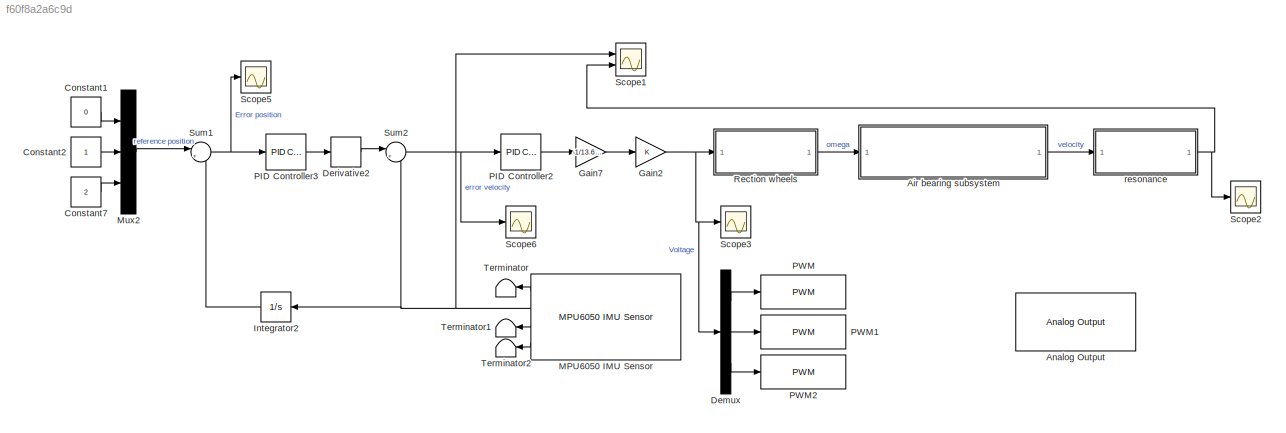
MODEL slx_f60f8a2a6c9d
KIND model
CONFIG AbsTol = auto
CONFIG EnableMultiTasking = off
CONFIG FixedStep = auto
CONFIG MaxStep = auto
CONFIG MinStep = auto
CONFIG RelTol = 1e-3
CONFIG SampleTimeConstraint = Unconstrained
CONFIG SolverName = VariableStepAuto
CONFIG StartTime = 0.0
CONFIG StopTime = 10.0
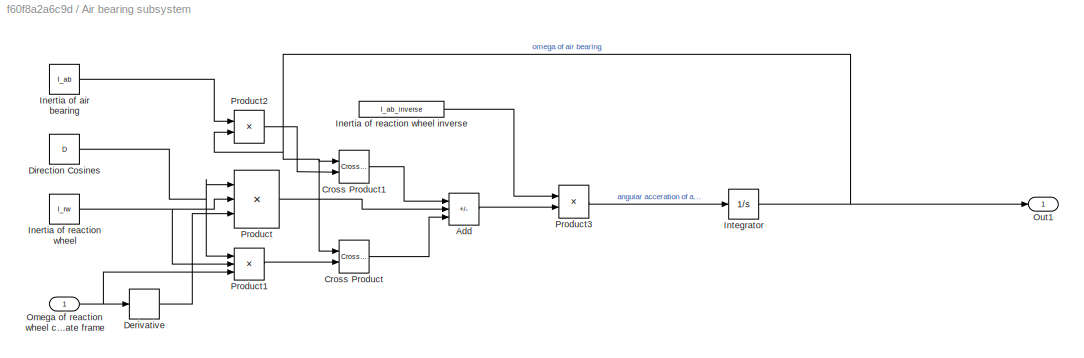
BLOCK [SubSystem] Air bearing subsystem
  Ports = [1, 1]
  RequestExecContextInheritance = off
BLOCK [Sum] Air bearing subsystem/Add
  IconShape = rectangular
  Inputs = ---
  Ports = [3, 1]
BLOCK [Reference] Air bearing subsystem/Cross Product  REF=vrlib/Utilities/Cross Product
  Ports = [2, 1]
  SourceBlock = vrlib/Utilities/Cross Product
  SourceProductBaseCode = VR
  SourceType = Cross Product
BLOCK [Reference] Air bearing subsystem/Cross Product1  REF=vrlib/Utilities/Cross Product
  Ports = [2, 1]
  SourceBlock = vrlib/Utilities/Cross Product
  SourceProductBaseCode = VR
  SourceType = Cross Product
BLOCK [Derivative] Air bearing subsystem/Derivative
BLOCK [Constant] Air bearing subsystem/Direction Cosines 
  Value = D
BLOCK [Constant] Air bearing subsystem/Inertia of air bearing
  Value = I_ab
BLOCK [Constant] Air bearing subsystem/Inertia of reaction wheel
  Value = I_rw
BLOCK [Constant] Air bearing subsystem/Inertia of reaction wheel inverse
  Value = I_ab_inverse
BLOCK [Integrator] Air bearing subsystem/Integrator
  InitialCondition = [0 1 2]
  Ports = [1, 1]
BLOCK [Inport] Air bearing subsystem/Omega of reaction wheel co-ordinate frame
BLOCK [Outport] Air bearing subsystem/Out1
  VectorParamsAs1DForOutWhenUnconnected = off
BLOCK [Product] Air bearing subsystem/Product
  Inputs = 3
  Multiplication = Matrix(*)
  Ports = [3, 1]
BLOCK [Product] Air bearing subsystem/Product1
  Inputs = 3
  Multiplication = Matrix(*)
  Ports = [3, 1]
BLOCK [Product] Air bearing subsystem/Product2
  Multiplication = Matrix(*)
  Ports = [2, 1]
BLOCK [Product] Air bearing subsystem/Product3
  Multiplication = Matrix(*)
  Ports = [2, 1]
BLOCK [Reference] Analog Output  REF=arduinolib/Analog Output
  Ports = [1]
  SourceBlock = arduinolib/Analog Output
  SourceProductBaseCode = ARDUINO
  SourceType = Analog Output
BLOCK [Constant] Constant1
  Value = 0
BLOCK [Constant] Constant2
BLOCK [Constant] Constant7
  Value = 2
BLOCK [Demux] Demux
  Outputs = 3
  Ports = [1, 3]
BLOCK [Derivative] Derivative2
BLOCK [Gain] Gain2
  Gain = K
  Multiplication = Matrix(K*u)
BLOCK [Gain] Gain7
  Gain = -1/13.661
BLOCK [Integrator] Integrator2
  InitialCondition = [1 2 3]
  Ports = [1, 1]
BLOCK [Reference] MPU6050 IMU Sensor  REF=arduinosensorlib/MPU6050 IMU Sensor
  Ports = [0, 4]
  SourceBlock = arduinosensorlib/MPU6050 IMU Sensor
  SourceProductBaseCode = ARDUINO
  SourceType = Arduino MPU6050
BLOCK [Mux] Mux2
  DisplayOption = bar
  Inputs = 3
  Ports = [3, 1]
BLOCK [Reference] PID Controller2  REF=pid_lib/PID Controller
  Ports = [1, 1]
  SourceBlock = pid_lib/PID Controller
  SourceProductBaseCode = SL
  SourceType = PID 1dof
BLOCK [Reference] PID Controller3  REF=pid_lib/PID Controller
  Ports = [1, 1]
  SourceBlock = pid_lib/PID Controller
  SourceProductBaseCode = SL
  SourceType = PID 1dof
BLOCK [Reference] PWM  REF=arduinolib/PWM
  Ports = [1]
  SourceBlock = arduinolib/PWM
  SourceProductBaseCode = ARDUINO
  SourceType = Arduino PWM
BLOCK [Reference] PWM1  REF=arduinolib/PWM
  Ports = [1]
  SourceBlock = arduinolib/PWM
  SourceProductBaseCode = ARDUINO
  SourceType = Arduino PWM
BLOCK [Reference] PWM2  REF=arduinolib/PWM
  Ports = [1]
  SourceBlock = arduinolib/PWM
  SourceProductBaseCode = ARDUINO
  SourceType = Arduino PWM
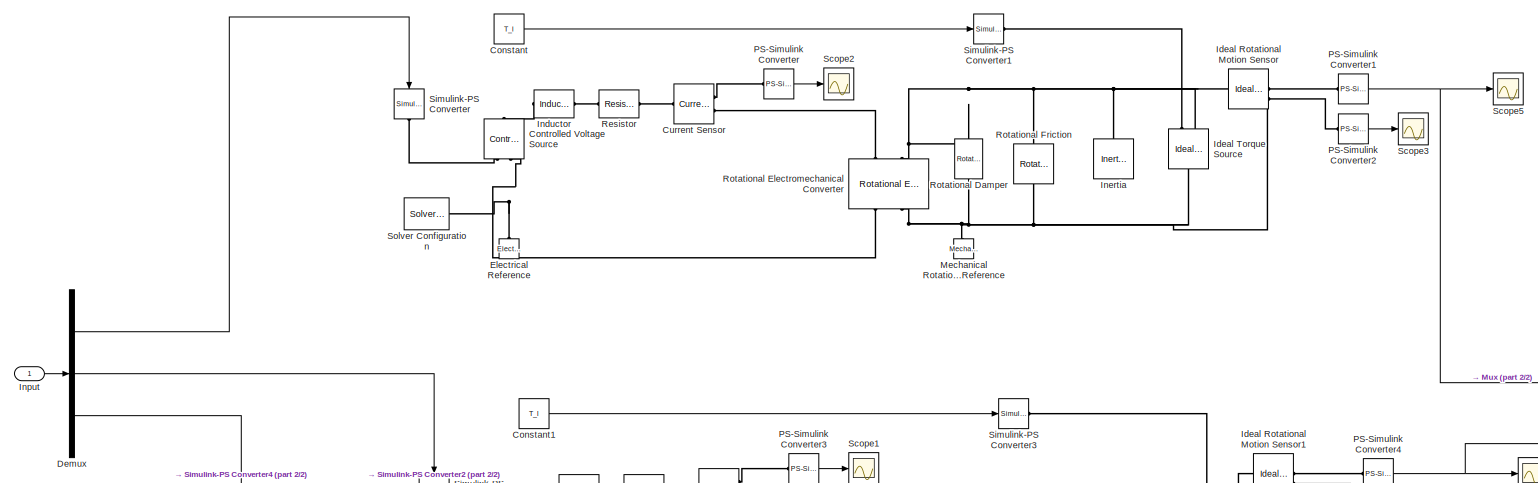
[diagram: Rection wheels - part 1/2, full width, top band]
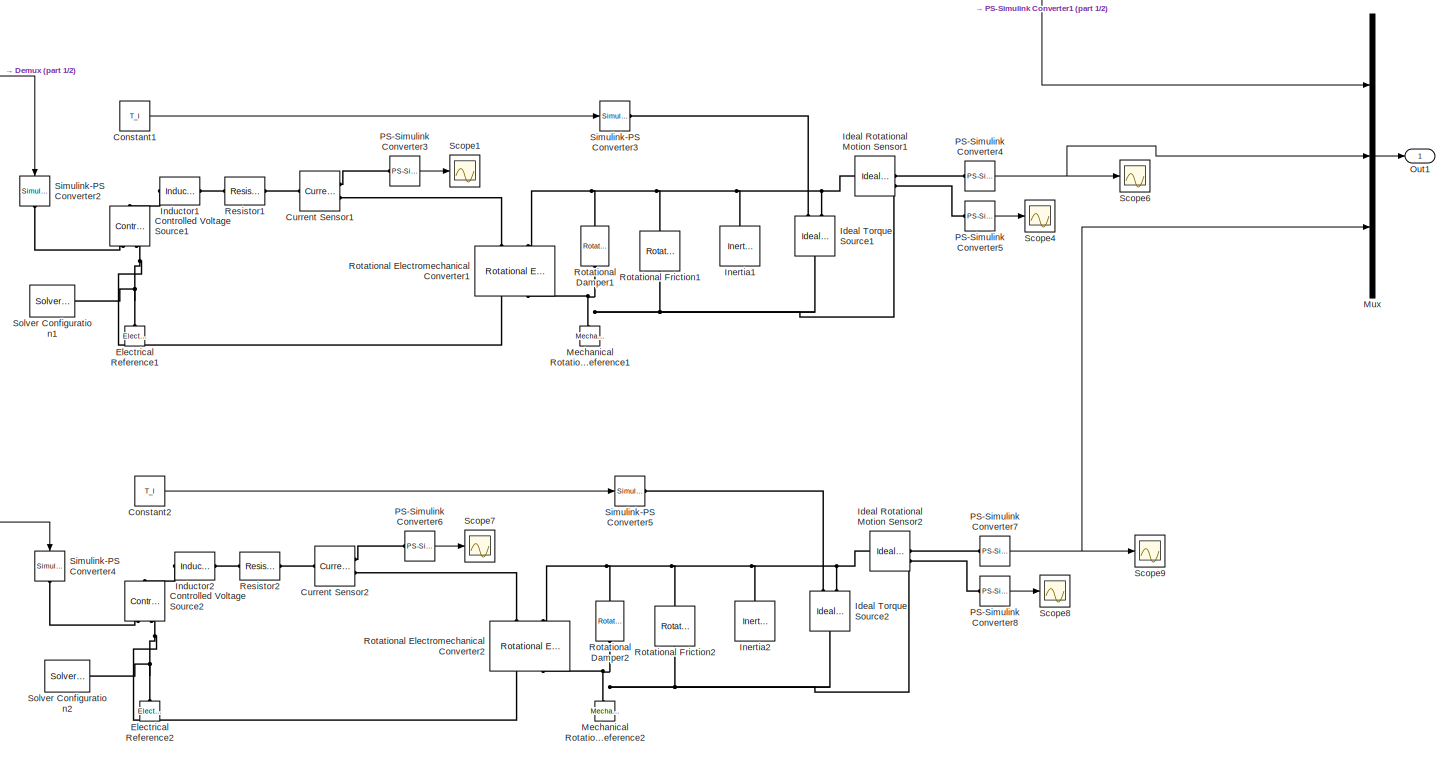
[diagram: Rection wheels - part 2/2, full width, middle band]
BLOCK [SubSystem] Rection wheels
  Ports = [1, 1]
  RequestExecContextInheritance = off
BLOCK [Constant] Rection wheels/Constant
  Value = T_l
BLOCK [Constant] Rection wheels/Constant1
  Value = T_l
BLOCK [Constant] Rection wheels/Constant2
  Value = T_l
BLOCK [Reference] Rection wheels/Controlled Voltage Source  REF=fl_lib/Electrical/Electrical Sources/Controlled Voltage
Source
  NameLocation = right
  Ports = [0, 0, 0, 0, 0, 1, 2]
  SourceBlock = fl_lib/Electrical/Electrical Sources/Controlled Voltage\nSource
  SourceProductBaseCode = SS
  SourceType = Controlled Voltage\nSource
BLOCK [Reference] Rection wheels/Controlled Voltage Source1  REF=fl_lib/Electrical/Electrical Sources/Controlled Voltage
Source
  NameLocation = right
  Ports = [0, 0, 0, 0, 0, 1, 2]
  SourceBlock = fl_lib/Electrical/Electrical Sources/Controlled Voltage\nSource
  SourceProductBaseCode = SS
  SourceType = Controlled Voltage\nSource
BLOCK [Reference] Rection wheels/Controlled Voltage Source2  REF=fl_lib/Electrical/Electrical Sources/Controlled Voltage
Source
  NameLocation = right
  Ports = [0, 0, 0, 0, 0, 1, 2]
  SourceBlock = fl_lib/Electrical/Electrical Sources/Controlled Voltage\nSource
  SourceProductBaseCode = SS
  SourceType = Controlled Voltage\nSource
BLOCK [Reference] Rection wheels/Current Sensor  REF=fl_lib/Electrical/Electrical Sensors/Current Sensor
  Ports = [0, 0, 0, 0, 0, 1, 2]
  SourceBlock = fl_lib/Electrical/Electrical Sensors/Current Sensor
  SourceProductBaseCode = SS
  SourceType = Current Sensor
BLOCK [Reference] Rection wheels/Current Sensor1  REF=fl_lib/Electrical/Electrical Sensors/Current Sensor
  Ports = [0, 0, 0, 0, 0, 1, 2]
  SourceBlock = fl_lib/Electrical/Electrical Sensors/Current Sensor
  SourceProductBaseCode = SS
  SourceType = Current Sensor
BLOCK [Reference] Rection wheels/Current Sensor2  REF=fl_lib/Electrical/Electrical Sensors/Current Sensor
  Ports = [0, 0, 0, 0, 0, 1, 2]
  SourceBlock = fl_lib/Electrical/Electrical Sensors/Current Sensor
  SourceProductBaseCode = SS
  SourceType = Current Sensor
BLOCK [Demux] Rection wheels/Demux
  Outputs = 3
  Ports = [1, 3]
BLOCK [Reference] Rection wheels/Electrical Reference  REF=fl_lib/Electrical/Electrical Elements/Electrical Reference
  NameLocation = right
  Ports = [0, 0, 0, 0, 0, 1]
  SourceBlock = fl_lib/Electrical/Electrical Elements/Electrical Reference
  SourceProductBaseCode = SS
  SourceType = Electrical Reference
BLOCK [Reference] Rection wheels/Electrical Reference1  REF=fl_lib/Electrical/Electrical Elements/Electrical Reference
  NameLocation = right
  Ports = [0, 0, 0, 0, 0, 1]
  SourceBlock = fl_lib/Electrical/Electrical Elements/Electrical Reference
  SourceProductBaseCode = SS
  SourceType = Electrical Reference
BLOCK [Reference] Rection wheels/Electrical Reference2  REF=fl_lib/Electrical/Electrical Elements/Electrical Reference
  NameLocation = right
  Ports = [0, 0, 0, 0, 0, 1]
  SourceBlock = fl_lib/Electrical/Electrical Elements/Electrical Reference
  SourceProductBaseCode = SS
  SourceType = Electrical Reference
BLOCK [Reference] Rection wheels/Ideal Rotational Motion Sensor  REF=fl_lib/Mechanical/Mechanical Sensors/Ideal Rotational
Motion Sensor
  Ports = [0, 0, 0, 0, 0, 1, 3]
  SourceBlock = fl_lib/Mechanical/Mechanical Sensors/Ideal Rotational\nMotion Sensor
  SourceProductBaseCode = SS
  SourceType = Ideal Rotational\nMotion Sensor
BLOCK [Reference] Rection wheels/Ideal Rotational Motion Sensor1  REF=fl_lib/Mechanical/Mechanical Sensors/Ideal Rotational
Motion Sensor
  Ports = [0, 0, 0, 0, 0, 1, 3]
  SourceBlock = fl_lib/Mechanical/Mechanical Sensors/Ideal Rotational\nMotion Sensor
  SourceProductBaseCode = SS
  SourceType = Ideal Rotational\nMotion Sensor
BLOCK [Reference] Rection wheels/Ideal Rotational Motion Sensor2  REF=fl_lib/Mechanical/Mechanical Sensors/Ideal Rotational
Motion Sensor
  Ports = [0, 0, 0, 0, 0, 1, 3]
  SourceBlock = fl_lib/Mechanical/Mechanical Sensors/Ideal Rotational\nMotion Sensor
  SourceProductBaseCode = SS
  SourceType = Ideal Rotational\nMotion Sensor
BLOCK [Reference] Rection wheels/Ideal Torque Source  REF=fl_lib/Mechanical/Mechanical Sources/Ideal Torque Source
  NameLocation = left
  Ports = [0, 0, 0, 0, 0, 1, 2]
  SourceBlock = fl_lib/Mechanical/Mechanical Sources/Ideal Torque Source
  SourceProductBaseCode = SS
  SourceType = Ideal Torque Source
BLOCK [Reference] Rection wheels/Ideal Torque Source1  REF=fl_lib/Mechanical/Mechanical Sources/Ideal Torque Source
  NameLocation = left
  Ports = [0, 0, 0, 0, 0, 1, 2]
  SourceBlock = fl_lib/Mechanical/Mechanical Sources/Ideal Torque Source
  SourceProductBaseCode = SS
  SourceType = Ideal Torque Source
BLOCK [Reference] Rection wheels/Ideal Torque Source2  REF=fl_lib/Mechanical/Mechanical Sources/Ideal Torque Source
  NameLocation = left
  Ports = [0, 0, 0, 0, 0, 1, 2]
  SourceBlock = fl_lib/Mechanical/Mechanical Sources/Ideal Torque Source
  SourceProductBaseCode = SS
  SourceType = Ideal Torque Source
BLOCK [Reference] Rection wheels/Inductor  REF=ee_lib/Passive/Inductor
  Ports = [0, 0, 0, 0, 0, 1, 1]
  SourceBlock = ee_lib/Passive/Inductor
  SourceProductBaseCode = SN
  SourceType = Inductor
BLOCK [Reference] Rection wheels/Inductor1  REF=ee_lib/Passive/Inductor
  Ports = [0, 0, 0, 0, 0, 1, 1]
  SourceBlock = ee_lib/Passive/Inductor
  SourceProductBaseCode = SN
  SourceType = Inductor
BLOCK [Reference] Rection wheels/Inductor2  REF=ee_lib/Passive/Inductor
  Ports = [0, 0, 0, 0, 0, 1, 1]
  SourceBlock = ee_lib/Passive/Inductor
  SourceProductBaseCode = SN
  SourceType = Inductor
BLOCK [Reference] Rection wheels/Inertia  REF=fl_lib/Mechanical/Rotational Elements/Inertia
  NameLocation = right
  Ports = [0, 0, 0, 0, 0, 1]
  SourceBlock = fl_lib/Mechanical/Rotational Elements/Inertia
  SourceProductBaseCode = SS
  SourceType = Inertia
BLOCK [Reference] Rection wheels/Inertia1  REF=fl_lib/Mechanical/Rotational Elements/Inertia
  NameLocation = right
  Ports = [0, 0, 0, 0, 0, 1]
  SourceBlock = fl_lib/Mechanical/Rotational Elements/Inertia
  SourceProductBaseCode = SS
  SourceType = Inertia
BLOCK [Reference] Rection wheels/Inertia2  REF=fl_lib/Mechanical/Rotational Elements/Inertia
  NameLocation = right
  Ports = [0, 0, 0, 0, 0, 1]
  SourceBlock = fl_lib/Mechanical/Rotational Elements/Inertia
  SourceProductBaseCode = SS
  SourceType = Inertia
BLOCK [Inport] Rection wheels/Input
BLOCK [Reference] Rection wheels/Mechanical Rotational Reference  REF=fl_lib/Mechanical/Rotational Elements/Mechanical
Rotational Reference
  NameLocation = right
  Ports = [0, 0, 0, 0, 0, 1]
  SourceBlock = fl_lib/Mechanical/Rotational Elements/Mechanical\nRotational Reference
  SourceProductBaseCode = SS
  SourceType = Mechanical\nRotational Reference
BLOCK [Reference] Rection wheels/Mechanical Rotational Reference1  REF=fl_lib/Mechanical/Rotational Elements/Mechanical
Rotational Reference
  NameLocation = right
  Ports = [0, 0, 0, 0, 0, 1]
  SourceBlock = fl_lib/Mechanical/Rotational Elements/Mechanical\nRotational Reference
  SourceProductBaseCode = SS
  SourceType = Mechanical\nRotational Reference
BLOCK [Reference] Rection wheels/Mechanical Rotational Reference2  REF=fl_lib/Mechanical/Rotational Elements/Mechanical
Rotational Reference
  NameLocation = right
  Ports = [0, 0, 0, 0, 0, 1]
  SourceBlock = fl_lib/Mechanical/Rotational Elements/Mechanical\nRotational Reference
  SourceProductBaseCode = SS
  SourceType = Mechanical\nRotational Reference
BLOCK [Mux] Rection wheels/Mux
  DisplayOption = bar
  Inputs = 3
  Ports = [3, 1]
BLOCK [Outport] Rection wheels/Out1
  VectorParamsAs1DForOutWhenUnconnected = off
BLOCK [Reference] Rection wheels/PS-Simulink Converter  REF=nesl_utility/PS-Simulink
Converter
  Ports = [0, 1, 0, 0, 0, 1]
  SourceBlock = nesl_utility/PS-Simulink\nConverter
  SourceProductBaseCode = SS
  SourceType = PS-Simulink\nConverter
BLOCK [Reference] Rection wheels/PS-Simulink Converter1  REF=nesl_utility/PS-Simulink
Converter
  Ports = [0, 1, 0, 0, 0, 1]
  SourceBlock = nesl_utility/PS-Simulink\nConverter
  SourceProductBaseCode = SS
  SourceType = PS-Simulink\nConverter
BLOCK [Reference] Rection wheels/PS-Simulink Converter2  REF=nesl_utility/PS-Simulink
Converter
  Ports = [0, 1, 0, 0, 0, 1]
  SourceBlock = nesl_utility/PS-Simulink\nConverter
  SourceProductBaseCode = SS
  SourceType = PS-Simulink\nConverter
BLOCK [Reference] Rection wheels/PS-Simulink Converter3  REF=nesl_utility/PS-Simulink
Converter
  Ports = [0, 1, 0, 0, 0, 1]
  SourceBlock = nesl_utility/PS-Simulink\nConverter
  SourceProductBaseCode = SS
  SourceType = PS-Simulink\nConverter
BLOCK [Reference] Rection wheels/PS-Simulink Converter4  REF=nesl_utility/PS-Simulink
Converter
  Ports = [0, 1, 0, 0, 0, 1]
  SourceBlock = nesl_utility/PS-Simulink\nConverter
  SourceProductBaseCode = SS
  SourceType = PS-Simulink\nConverter
BLOCK [Reference] Rection wheels/PS-Simulink Converter5  REF=nesl_utility/PS-Simulink
Converter
  Ports = [0, 1, 0, 0, 0, 1]
  SourceBlock = nesl_utility/PS-Simulink\nConverter
  SourceProductBaseCode = SS
  SourceType = PS-Simulink\nConverter
BLOCK [Reference] Rection wheels/PS-Simulink Converter6  REF=nesl_utility/PS-Simulink
Converter
  Ports = [0, 1, 0, 0, 0, 1]
  SourceBlock = nesl_utility/PS-Simulink\nConverter
  SourceProductBaseCode = SS
  SourceType = PS-Simulink\nConverter
BLOCK [Reference] Rection wheels/PS-Simulink Converter7  REF=nesl_utility/PS-Simulink
Converter
  Ports = [0, 1, 0, 0, 0, 1]
  SourceBlock = nesl_utility/PS-Simulink\nConverter
  SourceProductBaseCode = SS
  SourceType = PS-Simulink\nConverter
BLOCK [Reference] Rection wheels/PS-Simulink Converter8  REF=nesl_utility/PS-Simulink
Converter
  Ports = [0, 1, 0, 0, 0, 1]
  SourceBlock = nesl_utility/PS-Simulink\nConverter
  SourceProductBaseCode = SS
  SourceType = PS-Simulink\nConverter
BLOCK [Reference] Rection wheels/Resistor  REF=ee_lib/Passive/Resistor
  Ports = [0, 0, 0, 0, 0, 1, 1]
  SourceBlock = ee_lib/Passive/Resistor
  SourceProductBaseCode = SN
  SourceType = Resistor
BLOCK [Reference] Rection wheels/Resistor1  REF=ee_lib/Passive/Resistor
  Ports = [0, 0, 0, 0, 0, 1, 1]
  SourceBlock = ee_lib/Passive/Resistor
  SourceProductBaseCode = SN
  SourceType = Resistor
BLOCK [Reference] Rection wheels/Resistor2  REF=ee_lib/Passive/Resistor
  Ports = [0, 0, 0, 0, 0, 1, 1]
  SourceBlock = ee_lib/Passive/Resistor
  SourceProductBaseCode = SN
  SourceType = Resistor
BLOCK [Reference] Rection wheels/Rotational Damper  REF=fl_lib/Mechanical/Rotational Elements/Rotational Damper
  NameLocation = left
  Ports = [0, 0, 0, 0, 0, 1, 1]
  SourceBlock = fl_lib/Mechanical/Rotational Elements/Rotational Damper
  SourceProductBaseCode = SS
  SourceType = Rotational Damper
BLOCK [Reference] Rection wheels/Rotational Damper1  REF=fl_lib/Mechanical/Rotational Elements/Rotational Damper
  NameLocation = left
  Ports = [0, 0, 0, 0, 0, 1, 1]
  SourceBlock = fl_lib/Mechanical/Rotational Elements/Rotational Damper
  SourceProductBaseCode = SS
  SourceType = Rotational Damper
BLOCK [Reference] Rection wheels/Rotational Damper2  REF=fl_lib/Mechanical/Rotational Elements/Rotational Damper
  NameLocation = left
  Ports = [0, 0, 0, 0, 0, 1, 1]
  SourceBlock = fl_lib/Mechanical/Rotational Elements/Rotational Damper
  SourceProductBaseCode = SS
  SourceType = Rotational Damper
BLOCK [Reference] Rection wheels/Rotational Electromechanical Converter  REF=fl_lib/Electrical/Electrical Elements/Rotational
Electromechanical
Converter
  NameLocation = right
  Ports = [0, 0, 0, 0, 0, 2, 2]
  SourceBlock = fl_lib/Electrical/Electrical Elements/Rotational\nElectromechanical\nConverter
  SourceProductBaseCode = SS
  SourceType = Rotational\nElectromechanical\nConverter
BLOCK [Reference] Rection wheels/Rotational Electromechanical Converter1  REF=fl_lib/Electrical/Electrical Elements/Rotational
Electromechanical
Converter
  NameLocation = right
  Ports = [0, 0, 0, 0, 0, 2, 2]
  SourceBlock = fl_lib/Electrical/Electrical Elements/Rotational\nElectromechanical\nConverter
  SourceProductBaseCode = SS
  SourceType = Rotational\nElectromechanical\nConverter
BLOCK [Reference] Rection wheels/Rotational Electromechanical Converter2  REF=fl_lib/Electrical/Electrical Elements/Rotational
Electromechanical
Converter
  NameLocation = right
  Ports = [0, 0, 0, 0, 0, 2, 2]
  SourceBlock = fl_lib/Electrical/Electrical Elements/Rotational\nElectromechanical\nConverter
  SourceProductBaseCode = SS
  SourceType = Rotational\nElectromechanical\nConverter
BLOCK [Reference] Rection wheels/Rotational Friction  REF=fl_lib/Mechanical/Rotational Elements/Rotational Friction
  Commented = on
  NameLocation = left
  Ports = [0, 0, 0, 0, 0, 1, 1]
  SourceBlock = fl_lib/Mechanical/Rotational Elements/Rotational Friction
  SourceProductBaseCode = SS
  SourceType = Rotational Friction
BLOCK [Reference] Rection wheels/Rotational Friction1  REF=fl_lib/Mechanical/Rotational Elements/Rotational Friction
  Commented = on
  NameLocation = left
  Ports = [0, 0, 0, 0, 0, 1, 1]
  SourceBlock = fl_lib/Mechanical/Rotational Elements/Rotational Friction
  SourceProductBaseCode = SS
  SourceType = Rotational Friction
BLOCK [Reference] Rection wheels/Rotational Friction2  REF=fl_lib/Mechanical/Rotational Elements/Rotational Friction
  Commented = on
  NameLocation = left
  Ports = [0, 0, 0, 0, 0, 1, 1]
  SourceBlock = fl_lib/Mechanical/Rotational Elements/Rotational Friction
  SourceProductBaseCode = SS
  SourceType = Rotational Friction
BLOCK [Scope] Rection wheels/Scope1
  Floating = off
  NumInputPorts = 1
  Ports = [1]
  ScopeSpecificationString = Simulink.scopes.TimeScopeBlockCfg('CurrentConfiguration', extmgr.ConfigurationSet(extmgr.Configuration('Core','General UI',true),extmgr.Configuration('Core','Source UI',true),extmgr.Configuration('Sources','WiredSimulink',true,'DataLoggingVariableName','ScopeData3'),extmgr.Configuration('Visuals','Time Domain',true,'SerializedDisplays',{struct('MinYLimReal','-0.01701','MaxYLimReal','0.15307','YLab...<+1380ch>
BLOCK [Scope] Rection wheels/Scope2
  Floating = off
  NumInputPorts = 1
  Ports = [1]
  ScopeSpecificationString = Simulink.scopes.TimeScopeBlockCfg('CurrentConfiguration', extmgr.ConfigurationSet(extmgr.Configuration('Core','General UI',true),extmgr.Configuration('Core','Source UI',true),extmgr.Configuration('Sources','WiredSimulink',true,'DataLoggingVariableName','ScopeData1'),extmgr.Configuration('Visuals','Time Domain',true,'SerializedDisplays',{struct('MinYLimReal','-0.01701','MaxYLimReal','0.15307','YLab...<+1380ch>
BLOCK [Scope] Rection wheels/Scope3
  Floating = off
  NumInputPorts = 1
  Ports = [1]
  ScopeSpecificationString = Simulink.scopes.TimeScopeBlockCfg('CurrentConfiguration', extmgr.ConfigurationSet(extmgr.Configuration('Core','General UI',true),extmgr.Configuration('Core','Source UI',true),extmgr.Configuration('Sources','WiredSimulink',true,'DataLoggingVariableName','ScopeData2'),extmgr.Configuration('Visuals','Time Domain',true,'SerializedDisplays',{struct('MinYLimReal','-238.85785','MaxYLimReal','26.53976','Y...<+1393ch>
BLOCK [Scope] Rection wheels/Scope4
  Floating = off
  NumInputPorts = 1
  Ports = [1]
  ScopeSpecificationString = Simulink.scopes.TimeScopeBlockCfg('CurrentConfiguration', extmgr.ConfigurationSet(extmgr.Configuration('Core','General UI',true),extmgr.Configuration('Core','Source UI',true),extmgr.Configuration('Sources','WiredSimulink',true,'DataLoggingVariableName','ScopeData4'),extmgr.Configuration('Visuals','Time Domain',true,'SerializedDisplays',{struct('MinYLimReal','-854.11386','MaxYLimReal','7687.02476',...<+1439ch>
BLOCK [Scope] Rection wheels/Scope5
  Floating = off
  NumInputPorts = 1
  Ports = [1]
  ScopeSpecificationString = Simulink.scopes.TimeScopeBlockCfg('CurrentConfiguration', extmgr.ConfigurationSet(extmgr.Configuration('Core','General UI',true),extmgr.Configuration('Core','Source UI',true),extmgr.Configuration('Sources','WiredSimulink',true,'DataLoggingVariableName','ScopeData3'),extmgr.Configuration('Visuals','Time Domain',true,'SerializedDisplays',{struct('MinYLimReal','13.34911','MaxYLimReal','13.39302','YLa...<+1406ch>
BLOCK [Scope] Rection wheels/Scope6
  Floating = off
  NumInputPorts = 1
  Ports = [1]
  ScopeSpecificationString = Simulink.scopes.TimeScopeBlockCfg('CurrentConfiguration', extmgr.ConfigurationSet(extmgr.Configuration('Core','General UI',true),extmgr.Configuration('Core','Source UI',true),extmgr.Configuration('Sources','WiredSimulink',true,'DataLoggingVariableName','ScopeData5'),extmgr.Configuration('Visuals','Time Domain',true,'SerializedDisplays',{struct('MinYLimReal','-136.37752','MaxYLimReal','1227.39772',...<+1483ch>
BLOCK [Scope] Rection wheels/Scope7
  Floating = off
  NumInputPorts = 1
  Ports = [1]
  ScopeSpecificationString = Simulink.scopes.TimeScopeBlockCfg('CurrentConfiguration', extmgr.ConfigurationSet(extmgr.Configuration('Core','General UI',true),extmgr.Configuration('Core','Source UI',true),extmgr.Configuration('Sources','WiredSimulink',true,'DataLoggingVariableName','ScopeData6'),extmgr.Configuration('Visuals','Time Domain',true,'SerializedDisplays',{struct('MinYLimReal','-0.01701','MaxYLimReal','0.15307','YLab...<+1380ch>
BLOCK [Scope] Rection wheels/Scope8
  Floating = off
  NumInputPorts = 1
  Ports = [1]
  ScopeSpecificationString = Simulink.scopes.TimeScopeBlockCfg('CurrentConfiguration', extmgr.ConfigurationSet(extmgr.Configuration('Core','General UI',true),extmgr.Configuration('Core','Source UI',true),extmgr.Configuration('Sources','WiredSimulink',true,'DataLoggingVariableName','ScopeData7'),extmgr.Configuration('Visuals','Time Domain',true,'SerializedDisplays',{struct('MinYLimReal','-838.51584','MaxYLimReal','93.16843','Y...<+1393ch>
BLOCK [Scope] Rection wheels/Scope9
  Floating = off
  NumInputPorts = 1
  Ports = [1]
  ScopeSpecificationString = Simulink.scopes.TimeScopeBlockCfg('CurrentConfiguration', extmgr.ConfigurationSet(extmgr.Configuration('Core','General UI',true),extmgr.Configuration('Core','Source UI',true),extmgr.Configuration('Sources','WiredSimulink',true,'DataLoggingVariableName','ScopeData8'),extmgr.Configuration('Visuals','Time Domain',true,'SerializedDisplays',{struct('MinYLimReal','-213.98381','MaxYLimReal','23.77598','Y...<+1393ch>
BLOCK [Reference] Rection wheels/Simulink-PS Converter  REF=nesl_utility/Simulink-PS
Converter
  NameLocation = left
  Ports = [1, 0, 0, 0, 0, 0, 1]
  SourceBlock = nesl_utility/Simulink-PS\nConverter
  SourceProductBaseCode = SS
  SourceType = Simulink-PS\nConverter
BLOCK [Reference] Rection wheels/Simulink-PS Converter1  REF=nesl_utility/Simulink-PS
Converter
  Ports = [1, 0, 0, 0, 0, 0, 1]
  SourceBlock = nesl_utility/Simulink-PS\nConverter
  SourceProductBaseCode = SS
  SourceType = Simulink-PS\nConverter
BLOCK [Reference] Rection wheels/Simulink-PS Converter2  REF=nesl_utility/Simulink-PS
Converter
  NameLocation = left
  Ports = [1, 0, 0, 0, 0, 0, 1]
  SourceBlock = nesl_utility/Simulink-PS\nConverter
  SourceProductBaseCode = SS
  SourceType = Simulink-PS\nConverter
BLOCK [Reference] Rection wheels/Simulink-PS Converter3  REF=nesl_utility/Simulink-PS
Converter
  Ports = [1, 0, 0, 0, 0, 0, 1]
  SourceBlock = nesl_utility/Simulink-PS\nConverter
  SourceProductBaseCode = SS
  SourceType = Simulink-PS\nConverter
BLOCK [Reference] Rection wheels/Simulink-PS Converter4  REF=nesl_utility/Simulink-PS
Converter
  NameLocation = left
  Ports = [1, 0, 0, 0, 0, 0, 1]
  SourceBlock = nesl_utility/Simulink-PS\nConverter
  SourceProductBaseCode = SS
  SourceType = Simulink-PS\nConverter
BLOCK [Reference] Rection wheels/Simulink-PS Converter5  REF=nesl_utility/Simulink-PS
Converter
  Ports = [1, 0, 0, 0, 0, 0, 1]
  SourceBlock = nesl_utility/Simulink-PS\nConverter
  SourceProductBaseCode = SS
  SourceType = Simulink-PS\nConverter
BLOCK [Reference] Rection wheels/Solver Configuration  REF=nesl_utility/Solver
Configuration
  Ports = [0, 0, 0, 0, 0, 0, 1]
  SourceBlock = nesl_utility/Solver\nConfiguration
  SourceProductBaseCode = SS
  SourceType = Solver\nConfiguration
BLOCK [Reference] Rection wheels/Solver Configuration1  REF=nesl_utility/Solver
Configuration
  Ports = [0, 0, 0, 0, 0, 0, 1]
  SourceBlock = nesl_utility/Solver\nConfiguration
  SourceProductBaseCode = SS
  SourceType = Solver\nConfiguration
BLOCK [Reference] Rection wheels/Solver Configuration2  REF=nesl_utility/Solver
Configuration
  Ports = [0, 0, 0, 0, 0, 0, 1]
  SourceBlock = nesl_utility/Solver\nConfiguration
  SourceProductBaseCode = SS
  SourceType = Solver\nConfiguration
BLOCK [Scope] Scope1
  Floating = off
  NumInputPorts = 2
  Ports = [2]
  ScopeSpecificationString = Simulink.scopes.TimeScopeBlockCfg('CurrentConfiguration', extmgr.ConfigurationSet(extmgr.Configuration('Core','General UI',true),extmgr.Configuration('Core','Source UI',true),extmgr.Configuration('Sources','WiredSimulink',true,'DataLoggingVariableName','ScopeData1'),extmgr.Configuration('Visuals','Time Domain',true,'SerializedDisplays',{struct('MinYLimReal','-3.84705','MaxYLimReal','1.38057','YLab...<+1510ch>
BLOCK [Scope] Scope2
  Floating = off
  NumInputPorts = 1
  Ports = [1]
  ScopeSpecificationString = Simulink.scopes.TimeScopeBlockCfg('CurrentConfiguration', extmgr.ConfigurationSet(extmgr.Configuration('Core','General UI',true),extmgr.Configuration('Core','Source UI',true),extmgr.Configuration('Sources','WiredSimulink',true,'DataLoggingVariableName','ScopeData2'),extmgr.Configuration('Visuals','Time Domain',true,'SerializedDisplays',{struct('MinYLimReal','-21.28095','MaxYLimReal','9.98907','YLa...<+1514ch>
BLOCK [Scope] Scope3
  Floating = off
  NumInputPorts = 1
  Ports = [1]
  ScopeSpecificationString = Simulink.scopes.TimeScopeBlockCfg('CurrentConfiguration', extmgr.ConfigurationSet(extmgr.Configuration('Core','General UI',true),extmgr.Configuration('Core','Source UI',true),extmgr.Configuration('Sources','WiredSimulink',true,'DataLoggingVariableName','ScopeData4'),extmgr.Configuration('Visuals','Time Domain',true,'SerializedDisplays',{struct('MinYLimReal','-7579.76103','MaxYLimReal','9261.21194'...<+1532ch>
BLOCK [Scope] Scope5
  Floating = off
  NumInputPorts = 1
  Ports = [1]
  ScopeSpecificationString = Simulink.scopes.TimeScopeBlockCfg('CurrentConfiguration', extmgr.ConfigurationSet(extmgr.Configuration('Core','General UI',true),extmgr.Configuration('Core','Source UI',true),extmgr.Configuration('Sources','WiredSimulink',true,'DataLoggingVariableName','ScopeData6'),extmgr.Configuration('Visuals','Time Domain',true,'SerializedDisplays',{struct('MinYLimReal','-3.84705','MaxYLimReal','1.38057','YLab...<+1510ch>
BLOCK [Scope] Scope6
  Floating = off
  NumInputPorts = 1
  Ports = [1]
  ScopeSpecificationString = Simulink.scopes.TimeScopeBlockCfg('CurrentConfiguration', extmgr.ConfigurationSet(extmgr.Configuration('Core','General UI',true),extmgr.Configuration('Core','Source UI',true),extmgr.Configuration('Sources','WiredSimulink',true,'DataLoggingVariableName','ScopeData7'),extmgr.Configuration('Visuals','Time Domain',true,'SerializedDisplays',{struct('MinYLimReal','-21.28095','MaxYLimReal','9.98907','YLa...<+1514ch>
BLOCK [Sum] Sum1
  Inputs = |+-
  Ports = [2, 1]
BLOCK [Sum] Sum2
  Inputs = |+-
  Ports = [2, 1]
BLOCK [Terminator] Terminator
BLOCK [Terminator] Terminator1
BLOCK [Terminator] Terminator2
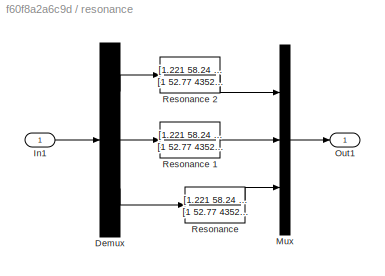
BLOCK [SubSystem] resonance
  Ports = [1, 1]
  RequestExecContextInheritance = off
BLOCK [Demux] resonance/Demux
  Outputs = 3
  Ports = [1, 3]
BLOCK [Inport] resonance/In1
BLOCK [Mux] resonance/Mux
  DisplayOption = bar
  Inputs = 3
  Ports = [3, 1]
BLOCK [Outport] resonance/Out1
  VectorParamsAs1DForOutWhenUnconnected = off
BLOCK [TransferFcn] resonance/Resonance 
  Denominator = [1 52.77 435249.55]
  Numerator = [1.221 58.24 435033.4]
BLOCK [TransferFcn] resonance/Resonance 1
  Denominator = [1 52.77 435249.55]
  Numerator = [1.221 58.24 435033.4]
BLOCK [TransferFcn] resonance/Resonance 2
  Denominator = [1 52.77 435249.55]
  Numerator = [1.221 58.24 435033.4]
LINE Air bearing subsystem/Add:1 -> Air bearing subsystem/Product3:2
LINE Air bearing subsystem/Cross Product1:1 -> Air bearing subsystem/Add:1
LINE Air bearing subsystem/Cross Product:1 -> Air bearing subsystem/Add:3
LINE Air bearing subsystem/Derivative:1 -> Air bearing subsystem/Product:3
NET Air bearing subsystem/Direction Cosines :1 -> Air bearing subsystem/Product1:1, Air bearing subsystem/Product:1
LINE Air bearing subsystem/Inertia of air bearing:1 -> Air bearing subsystem/Product2:1
LINE Air bearing subsystem/Inertia of reaction wheel inverse:1 -> Air bearing subsystem/Product3:1
NET Air bearing subsystem/Inertia of reaction wheel:1 -> Air bearing subsystem/Product1:2, Air bearing subsystem/Product:2
NET Air bearing subsystem/Integrator:1 -> Air bearing subsystem/Cross Product1:1, Air bearing subsystem/Cross Product:1, Air bearing subsystem/Out1:1, Air bearing subsystem/Product2:2
NET Air bearing subsystem/Omega of reaction wheel co-ordinate frame:1 -> Air bearing subsystem/Derivative:1, Air bearing subsystem/Product1:3
LINE Air bearing subsystem/Product1:1 -> Air bearing subsystem/Cross Product:2
LINE Air bearing subsystem/Product2:1 -> Air bearing subsystem/Cross Product1:2
LINE Air bearing subsystem/Product3:1 -> Air bearing subsystem/Integrator:1
LINE Air bearing subsystem/Product:1 -> Air bearing subsystem/Add:2
LINE Air bearing subsystem:1 -> resonance:1
LINE Constant1:1 -> Mux2:1
LINE Constant2:1 -> Mux2:2
LINE Constant7:1 -> Mux2:3
LINE Demux:1 -> PWM:1
LINE Demux:2 -> PWM1:1
LINE Demux:3 -> PWM2:1
LINE Derivative2:1 -> Sum2:1
NET Gain2:1 -> Demux:1, Rection wheels:1, Scope3:1
LINE Gain7:1 -> Gain2:1
LINE Integrator2:1 -> Sum1:2
LINE MPU6050 IMU Sensor:1 -> Terminator:1
NET MPU6050 IMU Sensor:2 -> Integrator2:1, Scope1:1, Sum2:2
LINE MPU6050 IMU Sensor:3 -> Terminator1:1
LINE MPU6050 IMU Sensor:4 -> Terminator2:1
LINE Mux2:1 -> Sum1:1
LINE PID Controller2:1 -> Gain7:1
LINE PID Controller3:1 -> Derivative2:1
LINE Rection wheels/Constant1:1 -> Rection wheels/Simulink-PS Converter3:1
LINE Rection wheels/Constant2:1 -> Rection wheels/Simulink-PS Converter5:1
LINE Rection wheels/Constant:1 -> Rection wheels/Simulink-PS Converter1:1
LINE Rection wheels/Demux:1 -> Rection wheels/Simulink-PS Converter:1
LINE Rection wheels/Demux:2 -> Rection wheels/Simulink-PS Converter2:1
LINE Rection wheels/Demux:3 -> Rection wheels/Simulink-PS Converter4:1
LINE Rection wheels/Input:1 -> Rection wheels/Demux:1
LINE Rection wheels/Mux:1 -> Rection wheels/Out1:1
NET Rection wheels/PS-Simulink Converter1:1 -> Rection wheels/Mux:1, Rection wheels/Scope5:1
LINE Rection wheels/PS-Simulink Converter2:1 -> Rection wheels/Scope3:1
LINE Rection wheels/PS-Simulink Converter3:1 -> Rection wheels/Scope1:1
NET Rection wheels/PS-Simulink Converter4:1 -> Rection wheels/Mux:2, Rection wheels/Scope6:1
LINE Rection wheels/PS-Simulink Converter5:1 -> Rection wheels/Scope4:1
LINE Rection wheels/PS-Simulink Converter6:1 -> Rection wheels/Scope7:1
NET Rection wheels/PS-Simulink Converter7:1 -> Rection wheels/Mux:3, Rection wheels/Scope9:1
LINE Rection wheels/PS-Simulink Converter8:1 -> Rection wheels/Scope8:1
LINE Rection wheels/PS-Simulink Converter:1 -> Rection wheels/Scope2:1
LINE Rection wheels:1 -> Air bearing subsystem:1
NET Sum1:1 -> PID Controller3:1, Scope5:1
NET Sum2:1 -> PID Controller2:1, Scope6:1
LINE resonance/Demux:1 -> resonance/Resonance 2:1
LINE resonance/Demux:2 -> resonance/Resonance 1:1
LINE resonance/Demux:3 -> resonance/Resonance :1
LINE resonance/In1:1 -> resonance/Demux:1
LINE resonance/Mux:1 -> resonance/Out1:1
LINE resonance/Resonance 1:1 -> resonance/Mux:2
LINE resonance/Resonance 2:1 -> resonance/Mux:1
LINE resonance/Resonance :1 -> resonance/Mux:3
NET resonance:1 -> Scope1:2, Scope2:1
PLINE Rection wheels/Controlled Voltage Source1:LConn1 -- Rection wheels/Inductor1:LConn1
PLINE Rection wheels/Controlled Voltage Source1:RConn1 -- Rection wheels/Simulink-PS Converter2:RConn1
PNET net1: Rection wheels/Controlled Voltage Source1:RConn2 -- Rection wheels/Electrical Reference1:LConn1 -- Rection wheels/Rotational Electromechanical Converter1:RConn1 -- Rection wheels/Solver Configuration1:RConn1
PLINE Rection wheels/Controlled Voltage Source2:LConn1 -- Rection wheels/Inductor2:LConn1
PLINE Rection wheels/Controlled Voltage Source2:RConn1 -- Rection wheels/Simulink-PS Converter4:RConn1
PNET net2: Rection wheels/Controlled Voltage Source2:RConn2 -- Rection wheels/Electrical Reference2:LConn1 -- Rection wheels/Rotational Electromechanical Converter2:RConn1 -- Rection wheels/Solver Configuration2:RConn1
PLINE Rection wheels/Controlled Voltage Source:LConn1 -- Rection wheels/Inductor:LConn1
PLINE Rection wheels/Controlled Voltage Source:RConn1 -- Rection wheels/Simulink-PS Converter:RConn1
PNET net3: Rection wheels/Controlled Voltage Source:RConn2 -- Rection wheels/Electrical Reference:LConn1 -- Rection wheels/Rotational Electromechanical Converter:RConn1 -- Rection wheels/Solver Configuration:RConn1
PLINE Rection wheels/Current Sensor1:LConn1 -- Rection wheels/Resistor1:RConn1
PLINE Rection wheels/Current Sensor1:RConn1 -- Rection wheels/PS-Simulink Converter3:LConn1
PLINE Rection wheels/Current Sensor1:RConn2 -- Rection wheels/Rotational Electromechanical Converter1:LConn1
PLINE Rection wheels/Current Sensor2:LConn1 -- Rection wheels/Resistor2:RConn1
PLINE Rection wheels/Current Sensor2:RConn1 -- Rection wheels/PS-Simulink Converter6:LConn1
PLINE Rection wheels/Current Sensor2:RConn2 -- Rection wheels/Rotational Electromechanical Converter2:LConn1
PLINE Rection wheels/Current Sensor:LConn1 -- Rection wheels/Resistor:RConn1
PLINE Rection wheels/Current Sensor:RConn1 -- Rection wheels/PS-Simulink Converter:LConn1
PLINE Rection wheels/Current Sensor:RConn2 -- Rection wheels/Rotational Electromechanical Converter:LConn1
PNET net4: Rection wheels/Ideal Rotational Motion Sensor1:LConn1 -- Rection wheels/Ideal Torque Source1:RConn2 -- Rection wheels/Inertia1:LConn1 -- Rection wheels/Rotational Damper1:LConn1 -- Rection wheels/Rotational Electromechanical Converter1:LConn2 -- Rection wheels/Rotational Friction1:LConn1
PNET net5: Rection wheels/Ideal Rotational Motion Sensor1:RConn1 -- Rection wheels/Ideal Torque Source1:LConn1 -- Rection wheels/Mechanical Rotational Reference1:LConn1 -- Rection wheels/Rotational Damper1:RConn1 -- Rection wheels/Rotational Electromechanical Converter1:RConn2 -- Rection wheels/Rotational Friction1:RConn1
PLINE Rection wheels/Ideal Rotational Motion Sensor1:RConn2 -- Rection wheels/PS-Simulink Converter4:LConn1
PLINE Rection wheels/Ideal Rotational Motion Sensor1:RConn3 -- Rection wheels/PS-Simulink Converter5:LConn1
PNET net6: Rection wheels/Ideal Rotational Motion Sensor2:LConn1 -- Rection wheels/Ideal Torque Source2:RConn2 -- Rection wheels/Inertia2:LConn1 -- Rection wheels/Rotational Damper2:LConn1 -- Rection wheels/Rotational Electromechanical Converter2:LConn2 -- Rection wheels/Rotational Friction2:LConn1
PNET net7: Rection wheels/Ideal Rotational Motion Sensor2:RConn1 -- Rection wheels/Ideal Torque Source2:LConn1 -- Rection wheels/Mechanical Rotational Reference2:LConn1 -- Rection wheels/Rotational Damper2:RConn1 -- Rection wheels/Rotational Electromechanical Converter2:RConn2 -- Rection wheels/Rotational Friction2:RConn1
PLINE Rection wheels/Ideal Rotational Motion Sensor2:RConn2 -- Rection wheels/PS-Simulink Converter7:LConn1
PLINE Rection wheels/Ideal Rotational Motion Sensor2:RConn3 -- Rection wheels/PS-Simulink Converter8:LConn1
PNET net8: Rection wheels/Ideal Rotational Motion Sensor:LConn1 -- Rection wheels/Ideal Torque Source:RConn2 -- Rection wheels/Inertia:LConn1 -- Rection wheels/Rotational Damper:LConn1 -- Rection wheels/Rotational Electromechanical Converter:LConn2 -- Rection wheels/Rotational Friction:LConn1
PNET net9: Rection wheels/Ideal Rotational Motion Sensor:RConn1 -- Rection wheels/Ideal Torque Source:LConn1 -- Rection wheels/Mechanical Rotational Reference:LConn1 -- Rection wheels/Rotational Damper:RConn1 -- Rection wheels/Rotational Electromechanical Converter:RConn2 -- Rection wheels/Rotational Friction:RConn1
PLINE Rection wheels/Ideal Rotational Motion Sensor:RConn2 -- Rection wheels/PS-Simulink Converter1:LConn1
PLINE Rection wheels/Ideal Rotational Motion Sensor:RConn3 -- Rection wheels/PS-Simulink Converter2:LConn1
PLINE Rection wheels/Ideal Torque Source1:RConn1 -- Rection wheels/Simulink-PS Converter3:RConn1
PLINE Rection wheels/Ideal Torque Source2:RConn1 -- Rection wheels/Simulink-PS Converter5:RConn1
PLINE Rection wheels/Ideal Torque Source:RConn1 -- Rection wheels/Simulink-PS Converter1:RConn1
PLINE Rection wheels/Inductor1:RConn1 -- Rection wheels/Resistor1:LConn1
PLINE Rection wheels/Inductor2:RConn1 -- Rection wheels/Resistor2:LConn1
PLINE Rection wheels/Inductor:RConn1 -- Rection wheels/Resistor:LConn1
note: NET lines group one-source signal fan-out (src -> all destinations, sorted); 1:1 wires keep LINE; PNET lines group multi-terminal physical nets as a canonical sorted terminal list (undirected conserving connections); 2-terminal nets keep the pairwise PLINE form
